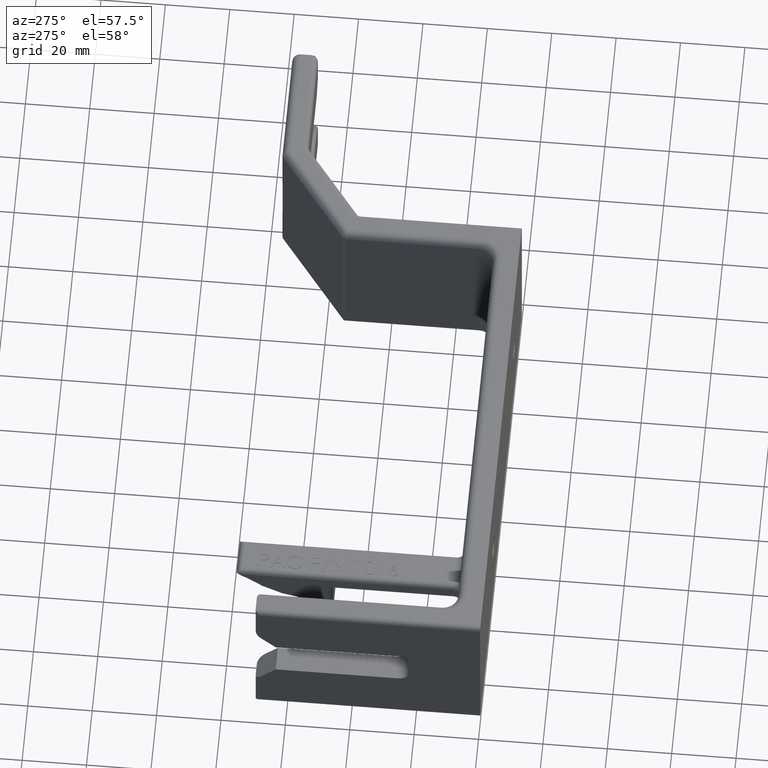
[diagram: clean part render]
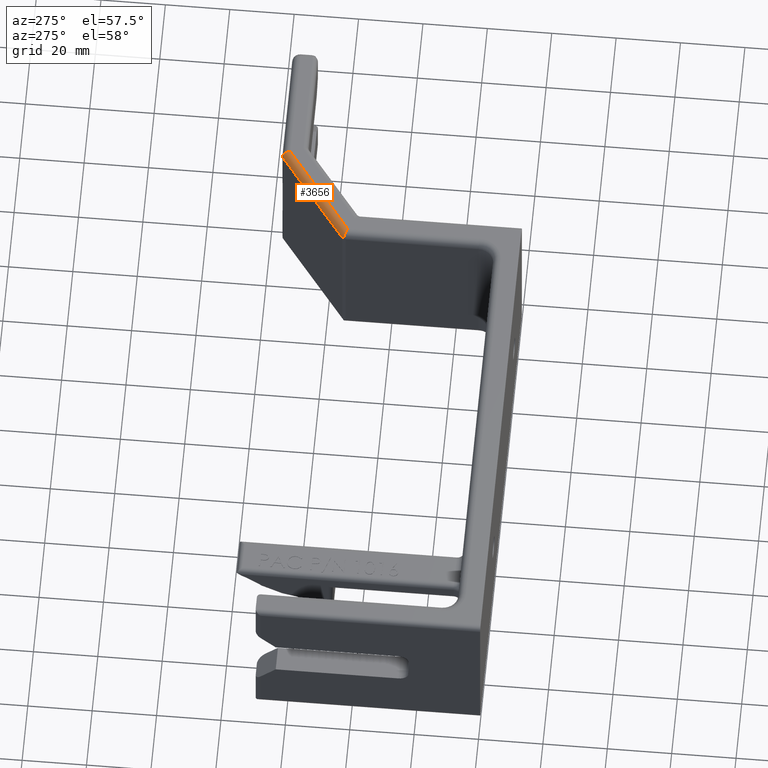
[diagram: same view with one face highlighted and labeled with its STEP entity id]
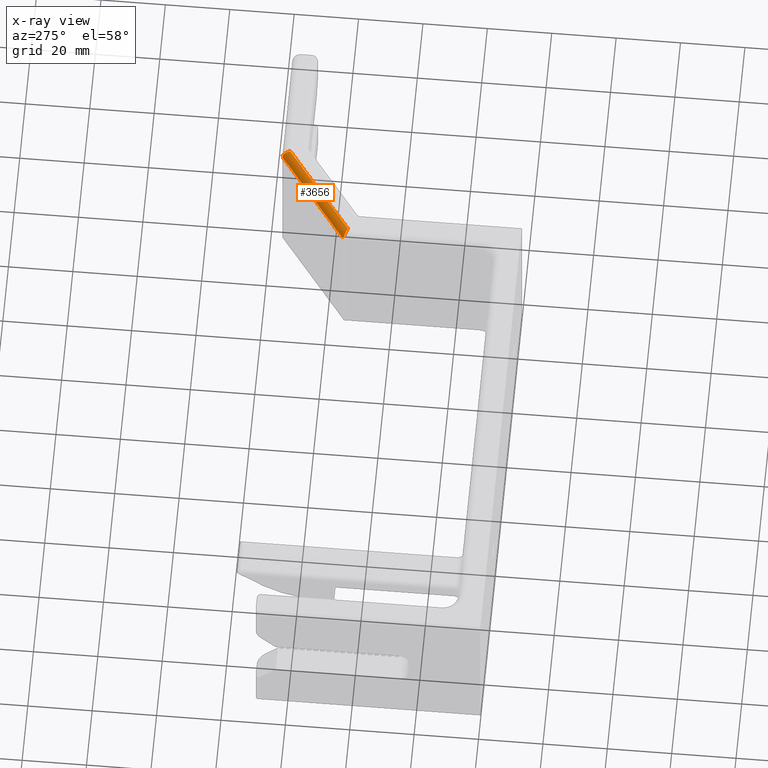
[diagram: x-ray of the same camera — body ghosted, the highlighted face saturated]
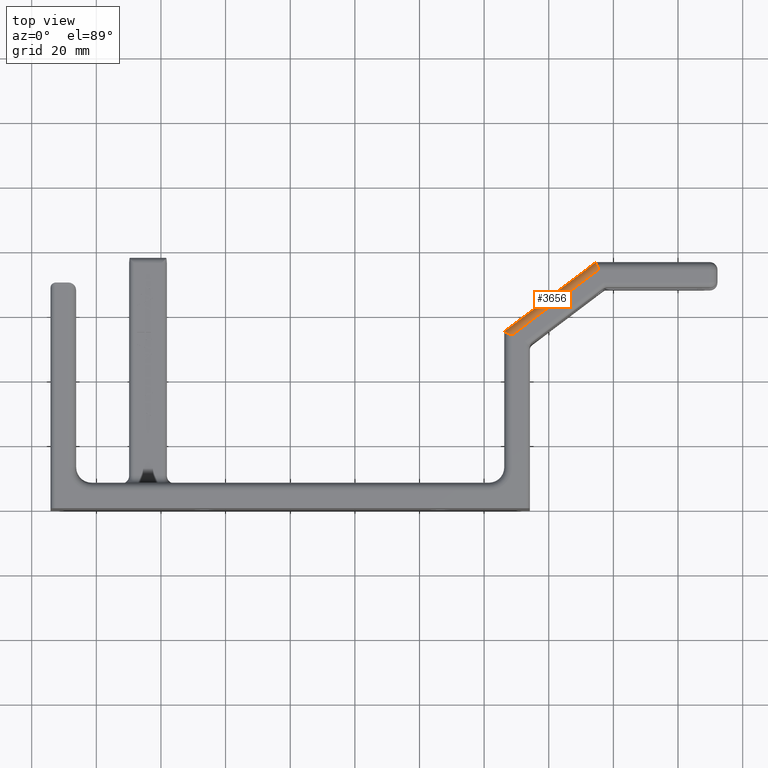
[diagram: same view with one face highlighted and labeled with its STEP entity id]
A machine part, auxiliary view. The second image highlights one B-rep face of the part: STEP entity #3656.
The next image is the same camera in x-ray: the body ghosted, the highlighted face saturated — about 0% of this face is hidden behind the body in this view.
A second angle (top view) of the same face is appended — the face is thin or edge-on in the first view.
In plain terms, the highlighted cylindrical surface (edge-blend (fillet) strip) has radius 2.3812 mm, axis along (0.7979, 0.6028, 0).
Its self-contained STEP definition (entity closure, byte-faithful):
#153 = VERTEX_POINT ( 'NONE', #7692 ) ;
#540 = CARTESIAN_POINT ( 'NONE',  ( 2.614049371660930100, 2.152305253529327900, 0.9406754690203544800 ) ) ;
#672 = CARTESIAN_POINT ( 'NONE',  ( 3.708504137505092700, 2.987368172031926100, 0.9062499999999998900 ) ) ;
#838 = VERTEX_POINT ( 'NONE', #6620 ) ;
#857 = VECTOR ( 'NONE', #9471, 39.37007874015748900 ) ;
#990 = DIRECTION ( 'NONE',  ( -0.6028020795067985400, 0.7978907525108179800, 0.0000000000000000000 ) ) ;
#1001 = CARTESIAN_POINT ( 'NONE',  ( 2.664012694953762600, 2.080763337572223200, 1.000000000000000000 ) ) ;
#1077 = EDGE_CURVE ( 'NONE', #4171, #9014, #9078, .T. ) ;
#1476 = ORIENTED_EDGE ( 'NONE', *, *, #1077, .T. ) ;
#1689 = VECTOR ( 'NONE', #4913, 39.37007874015748900 ) ;
#1919 = CARTESIAN_POINT ( 'NONE',  ( 2.701249999999999900, 2.108895916934078400, 1.000000000000000000 ) ) ;
#2075 = CARTESIAN_POINT ( 'NONE',  ( 2.632324870030824800, 2.174320648528016400, 0.9062499999999998900 ) ) ;
#2132 = CARTESIAN_POINT ( 'NONE',  ( 3.719796842779114600, 2.994573841577191000, 0.9226032303109841200 ) ) ;
#2231 = CARTESIAN_POINT ( 'NONE',  ( 3.726311086279143800, 2.996757956225284400, 0.9306912020965031300 ) ) ;
#2421 = CARTESIAN_POINT ( 'NONE',  ( 2.701249999999999900, 2.108895916934078400, 1.000000000000000000 ) ) ;
#2453 = EDGE_CURVE ( 'NONE', #2855, #3130, #4584, .T. ) ;
#2476 = CARTESIAN_POINT ( 'NONE',  ( 3.756656859039984500, 2.906250000000000000, 1.000000000000000000 ) ) ;
#2698 = EDGE_CURVE ( 'NONE', #153, #3130, #3194, .T. ) ;
#2785 = ORIENTED_EDGE ( 'NONE', *, *, #5533, .T. ) ;
#2855 = VERTEX_POINT ( 'NONE', #2476 ) ;
#2899 = CARTESIAN_POINT ( 'NONE',  ( 3.713830731492499200, 2.991392384522422600, 0.9144262105351441700 ) ) ;
#2950 = LINE ( 'NONE', #3273, #857 ) ;
#3130 = VERTEX_POINT ( 'NONE', #2421 ) ;
#3194 =( BOUNDED_CURVE ( )  B_SPLINE_CURVE ( 3, ( #5798, #9665, #6578, #1919 ),
 .UNSPECIFIED., .F., .T. ) 
 B_SPLINE_CURVE_WITH_KNOTS ( ( 4, 4 ),
 ( 0.3760023109059857400, 1.570796326794895400 ),
 .UNSPECIFIED. ) 
 CURVE ( )  GEOMETRIC_REPRESENTATION_ITEM ( )  RATIONAL_B_SPLINE_CURVE ( ( 1.000000000000000000, 0.8845350513768949200, 0.8845350513768949200, 1.000000000000000000 ) ) 
 REPRESENTATION_ITEM ( '' )  );
#3273 = CARTESIAN_POINT ( 'NONE',  ( 3.725224084342834400, 3.000000000000000400, 0.9062499999999998900 ) ) ;
#3656 = ADVANCED_FACE ( 'NONE', ( #7020 ), #4515, .T. ) ;
#3800 = CARTESIAN_POINT ( 'NONE',  ( 3.741887572480744800, 2.950300219182666600, 1.000000000000000200 ) ) ;
#4171 = VERTEX_POINT ( 'NONE', #5675 ) ;
#4442 = CARTESIAN_POINT ( 'NONE',  ( 2.625079483516852700, 2.168169658941072200, 0.9178712953802808900 ) ) ;
#4515 = CYLINDRICAL_SURFACE ( 'NONE', #9273, 0.09374999999999984700 ) ;
#4584 = LINE ( 'NONE', #1001, #1689 ) ;
#4913 = DIRECTION ( 'NONE',  ( -0.7978907525108177600, -0.6028020795067986500, 0.0000000000000000000 ) ) ;
#5211 = CARTESIAN_POINT ( 'NONE',  ( 2.616280024141970400, 2.156786185817384000, 0.9350251669768953100 ) ) ;
#5533 = EDGE_CURVE ( 'NONE', #838, #153, #6112, .T. ) ;
#5675 = CARTESIAN_POINT ( 'NONE',  ( 3.726311086279143800, 2.996757956225284400, 0.9306912020965031300 ) ) ;
#5798 = CARTESIAN_POINT ( 'NONE',  ( 2.614049371660930100, 2.152305253529327900, 0.9406754690203544800 ) ) ;
#6112 = B_SPLINE_CURVE_WITH_KNOTS ( 'NONE', 3,
 ( #2075, #8302, #4442, #9848, #5211, #540 ),
 .UNSPECIFIED., .F., .F.,
 ( 4, 2, 4 ),
 ( -9.759618025352500600E-006, 0.0005587908706641909000, 0.001127341359353734300 ),
 .UNSPECIFIED. ) ;
#6419 = CARTESIAN_POINT ( 'NONE',  ( 1.826196635442357600, 1.447797907996299700, 0.9062499999999998900 ) ) ;
#6460 =( BOUNDED_CURVE ( )  B_SPLINE_CURVE ( 3, ( #2231, #6871, #3800, #9218 ),
 .UNSPECIFIED., .F., .T. ) 
 B_SPLINE_CURVE_WITH_KNOTS ( ( 4, 4 ),
 ( 0.2637535813219303900, 1.570796326794900100 ),
 .UNSPECIFIED. ) 
 CURVE ( )  GEOMETRIC_REPRESENTATION_ITEM ( )  RATIONAL_B_SPLINE_CURVE ( ( 1.000000000000000000, 0.8626318535353141300, 0.8626318535353141300, 1.000000000000000000 ) ) 
 REPRESENTATION_ITEM ( '' )  );
#6578 = CARTESIAN_POINT ( 'NONE',  ( 2.661505092491024200, 2.128681325604478800, 1.000000000000000000 ) ) ;
#6620 = CARTESIAN_POINT ( 'NONE',  ( 2.632324870030824800, 2.174320648528016400, 0.9062499999999998900 ) ) ;
#6871 = CARTESIAN_POINT ( 'NONE',  ( 3.730161530200377200, 2.985273792924604000, 0.9732180853978248400 ) ) ;
#7020 = FACE_OUTER_BOUND ( 'NONE', #7075, .T. ) ;
#7075 = EDGE_LOOP ( 'NONE', ( #7626, #1476, #7348, #2785, #8553, #7878 ) ) ;
#7189 = DIRECTION ( 'NONE',  ( 0.7978907525108178700, 0.6028020795067987600, 0.0000000000000000000 ) ) ;
#7348 = ORIENTED_EDGE ( 'NONE', *, *, #9467, .F. ) ;
#7626 = ORIENTED_EDGE ( 'NONE', *, *, #9375, .F. ) ;
#7692 = CARTESIAN_POINT ( 'NONE',  ( 2.614049371660930100, 2.152305253529327900, 0.9406754690203544800 ) ) ;
#7878 = ORIENTED_EDGE ( 'NONE', *, *, #2453, .F. ) ;
#8302 = CARTESIAN_POINT ( 'NONE',  ( 2.628559673435087300, 2.171476063187828900, 0.9120294981451566600 ) ) ;
#8553 = ORIENTED_EDGE ( 'NONE', *, *, #2698, .T. ) ;
#9014 = VERTEX_POINT ( 'NONE', #672 ) ;
#9078 = B_SPLINE_CURVE_WITH_KNOTS ( 'NONE', 3,
 ( #9129, #2132, #2899, #9902 ),
 .UNSPECIFIED., .F., .F.,
 ( 4, 4 ),
 ( 0.0000000000000000000, 0.0008043239012224665700 ),
 .UNSPECIFIED. ) ;
#9129 = CARTESIAN_POINT ( 'NONE',  ( 3.726311086279143800, 2.996757956225284400, 0.9306912020965031300 ) ) ;
#9218 = CARTESIAN_POINT ( 'NONE',  ( 3.756656859039984500, 2.906250000000000000, 1.000000000000000000 ) ) ;
#9273 = AXIS2_PLACEMENT_3D ( 'NONE', #6419, #7189, #990 ) ;
#9375 = EDGE_CURVE ( 'NONE', #4171, #2855, #6460, .T. ) ;
#9467 = EDGE_CURVE ( 'NONE', #838, #9014, #2950, .T. ) ;
#9471 = DIRECTION ( 'NONE',  ( 0.7978907525108177600, 0.6028020795067986500, -0.0000000000000000000 ) ) ;
#9665 = CARTESIAN_POINT ( 'NONE',  ( 2.628643900537379200, 2.145039952481456100, 0.9776437987063375500 ) ) ;
#9848 = CARTESIAN_POINT ( 'NONE',  ( 2.618960318992003900, 2.160839229643942700, 0.9293389145325253700 ) ) ;
#9902 = CARTESIAN_POINT ( 'NONE',  ( 3.708504137505092700, 2.987368172031926100, 0.9062499999999998900 ) ) ;